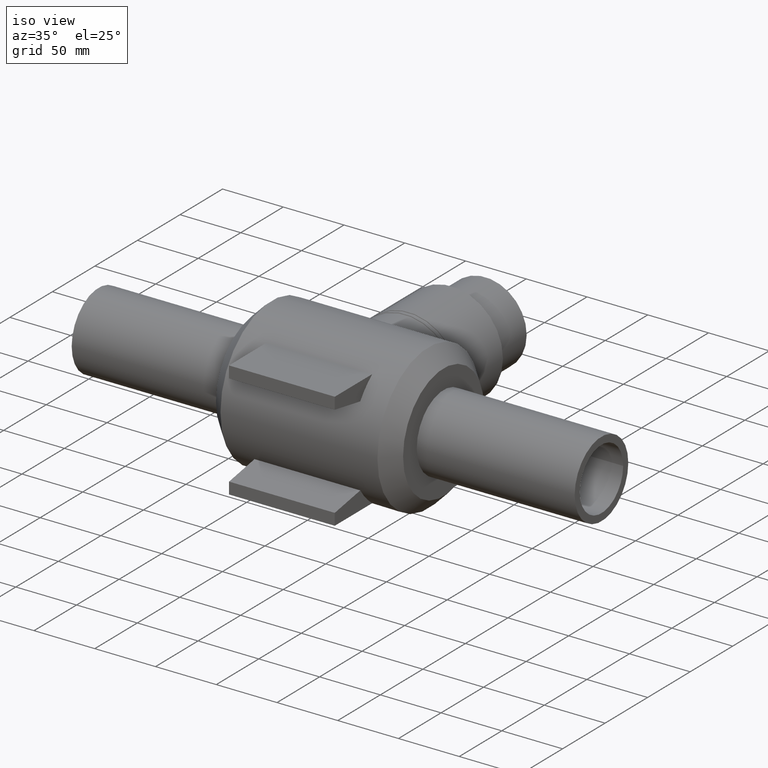
[diagram: clean part render]
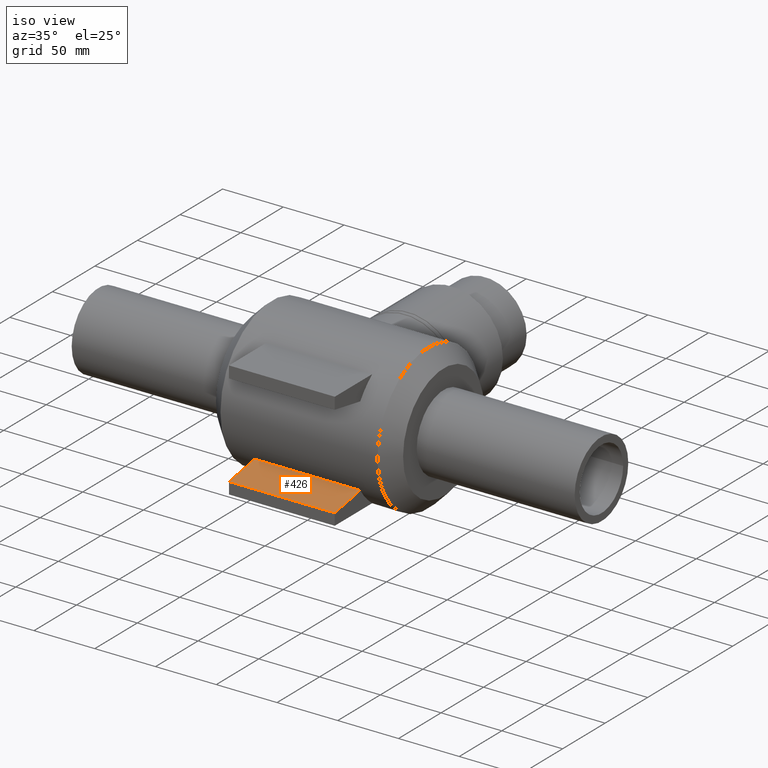
[diagram: same view with one face highlighted and labeled with its STEP entity id]
A machine part, iso view. The second image highlights one B-rep face of the part: STEP entity #426.
In plain terms, the highlighted planar face has unit normal (0, 0.1736, -0.9848).
Its self-contained STEP definition (entity closure, byte-faithful):
#21=PLANE('',#476);
#40=LINE('',#857,#60);
#44=LINE('',#891,#64);
#45=LINE('',#894,#65);
#46=LINE('',#895,#66);
#60=VECTOR('',#528,87.);
#64=VECTOR('',#570,30.429027259081);
#65=VECTOR('',#573,87.);
#66=VECTOR('',#574,30.429027259081);
#125=FACE_OUTER_BOUND('',#170,.T.);
#170=EDGE_LOOP('',(#354,#355,#356,#357));
#239=VERTEX_POINT('',#854);
#240=VERTEX_POINT('',#856);
#251=VERTEX_POINT('',#889);
#252=VERTEX_POINT('',#893);
#279=EDGE_CURVE('',#239,#240,#40,.T.);
#292=EDGE_CURVE('',#239,#251,#44,.T.);
#293=EDGE_CURVE('',#251,#252,#45,.T.);
#294=EDGE_CURVE('',#252,#240,#46,.T.);
#354=ORIENTED_EDGE('',*,*,#279,.F.);
#355=ORIENTED_EDGE('',*,*,#292,.T.);
#356=ORIENTED_EDGE('',*,*,#293,.T.);
#357=ORIENTED_EDGE('',*,*,#294,.T.);
#426=ADVANCED_FACE('',(#125),#21,.F.);
#476=AXIS2_PLACEMENT_3D('',#892,#571,#572);
#528=DIRECTION('',(1.,0.,0.));
#570=DIRECTION('',(0.,-0.984807753012208,-0.17364817766693));
#571=DIRECTION('center_axis',(0.,0.17364817766693,-0.984807753012208));
#572=DIRECTION('ref_axis',(0.,0.984807753012208,0.17364817766693));
#573=DIRECTION('',(1.,0.,0.));
#574=DIRECTION('',(0.,0.984807753012208,0.17364817766693));
#854=CARTESIAN_POINT('',(-43.5,-50.0332580386372,-33.1160548682833));
#856=CARTESIAN_POINT('',(43.5,-50.0332580386372,-33.1160548682833));
#857=CARTESIAN_POINT('',(0.,-50.0332580386372,-33.1160548682833));
#889=CARTESIAN_POINT('',(-43.5,-80.,-38.4));
#891=CARTESIAN_POINT('',(-43.5,-80.,-38.4));
#892=CARTESIAN_POINT('Origin',(0.,-80.,-38.4));
#893=CARTESIAN_POINT('',(43.5,-80.,-38.4));
#894=CARTESIAN_POINT('',(0.,-80.,-38.4));
#895=CARTESIAN_POINT('',(43.5,-80.,-38.4));